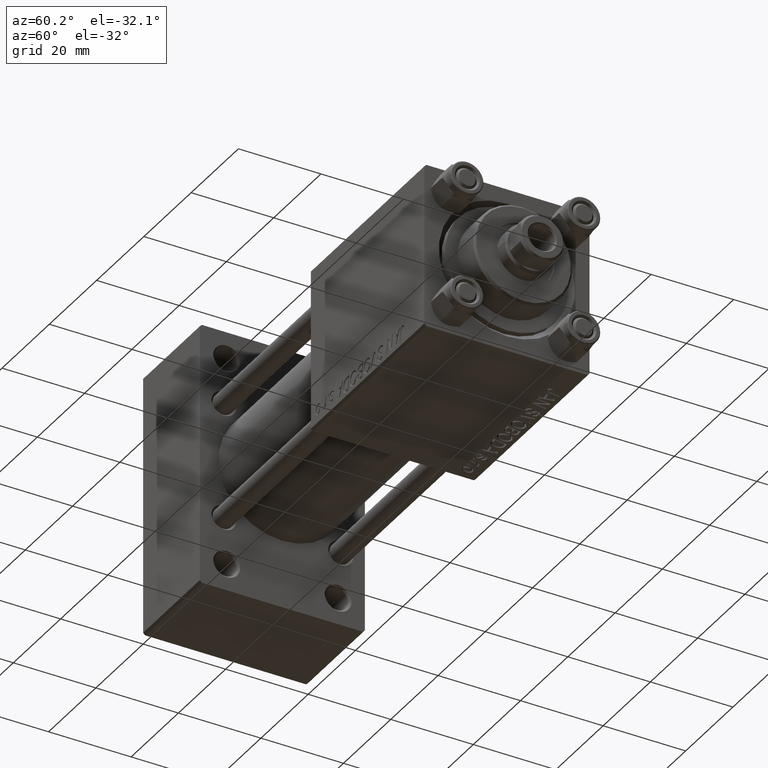
[diagram: clean part render]
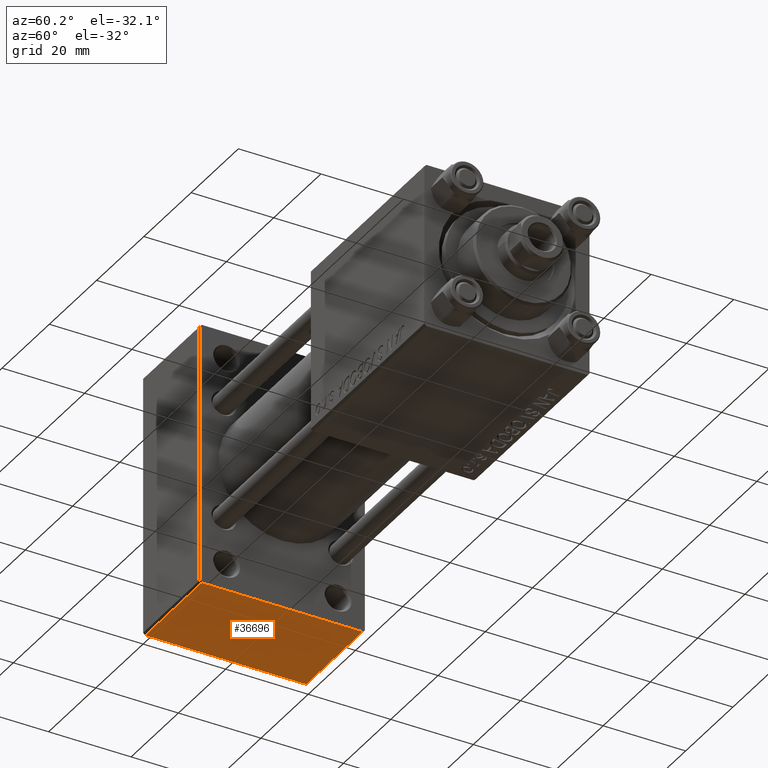
[diagram: same view with one face highlighted and labeled with its STEP entity id]
A machine part, auxiliary view. The second image highlights one B-rep face of the part: STEP entity #36696.
In plain terms, the highlighted planar face has unit normal (0, 0, -1).
Its self-contained STEP definition (entity closure, byte-faithful):
#1275 = VECTOR ( 'NONE', #8509, 1000.000000000000000 ) ;
#2503 = DIRECTION ( 'NONE',  ( -1.000000000000000000, 0.000000000000000000, -0.000000000000000000 ) ) ;
#2704 = VERTEX_POINT ( 'NONE', #43427 ) ;
#3828 = ORIENTED_EDGE ( 'NONE', *, *, #10250, .F. ) ;
#3974 = EDGE_CURVE ( 'NONE', #2704, #20991, #20163, .T. ) ;
#4506 = LINE ( 'NONE', #19899, #42049 ) ;
#4762 = CARTESIAN_POINT ( 'NONE',  ( 0.000000000000000000, -19.49999999999999645, -31.99999999999999289 ) ) ;
#5009 = DIRECTION ( 'NONE',  ( -1.000000000000000000, 0.000000000000000000, 0.000000000000000000 ) ) ;
#8509 = DIRECTION ( 'NONE',  ( 1.000000000000000000, 0.000000000000000000, 0.000000000000000000 ) ) ;
#9582 = FACE_OUTER_BOUND ( 'NONE', #32391, .T. ) ;
#10076 = CARTESIAN_POINT ( 'NONE',  ( 24.00000000000000000, 19.99999999999999645, -31.99999999999999289 ) ) ;
#10250 = EDGE_CURVE ( 'NONE', #45959, #20991, #4506, .T. ) ;
#12355 = CARTESIAN_POINT ( 'NONE',  ( 24.00000000000000000, 19.99999999999999645, -31.99999999999999289 ) ) ;
#17734 = VERTEX_POINT ( 'NONE', #35892 ) ;
#17906 = PLANE ( 'NONE',  #28968 ) ;
#19899 = CARTESIAN_POINT ( 'NONE',  ( 0.000000000000000000, 19.99999999999999645, -31.99999999999999289 ) ) ;
#20163 = LINE ( 'NONE', #4762, #21040 ) ;
#20676 = LINE ( 'NONE', #12355, #25183 ) ;
#20991 = VERTEX_POINT ( 'NONE', #21212 ) ;
#21040 = VECTOR ( 'NONE', #5009, 1000.000000000000000 ) ;
#21212 = CARTESIAN_POINT ( 'NONE',  ( 0.000000000000000000, -19.49999999999999645, -31.99999999999999289 ) ) ;
#23136 = EDGE_CURVE ( 'NONE', #45959, #17734, #42855, .T. ) ;
#25183 = VECTOR ( 'NONE', #36062, 1000.000000000000000 ) ;
#25232 = ORIENTED_EDGE ( 'NONE', *, *, #42055, .T. ) ;
#28968 = AXIS2_PLACEMENT_3D ( 'NONE', #10076, #37078, #2503 ) ;
#29257 = CARTESIAN_POINT ( 'NONE',  ( 0.000000000000000000, 19.49999999999999645, -31.99999999999999289 ) ) ;
#29416 = ORIENTED_EDGE ( 'NONE', *, *, #23136, .T. ) ;
#32391 = EDGE_LOOP ( 'NONE', ( #3828, #29416, #25232, #49721 ) ) ;
#35536 = DIRECTION ( 'NONE',  ( 0.000000000000000000, -1.000000000000000000, 0.000000000000000000 ) ) ;
#35892 = CARTESIAN_POINT ( 'NONE',  ( 24.00000000000000000, 19.49999999999999645, -31.99999999999999289 ) ) ;
#36062 = DIRECTION ( 'NONE',  ( 0.000000000000000000, -1.000000000000000000, 0.000000000000000000 ) ) ;
#36696 = ADVANCED_FACE ( 'NONE', ( #9582 ), #17906, .T. ) ;
#37078 = DIRECTION ( 'NONE',  ( 0.000000000000000000, 0.000000000000000000, -1.000000000000000000 ) ) ;
#42049 = VECTOR ( 'NONE', #35536, 1000.000000000000000 ) ;
#42055 = EDGE_CURVE ( 'NONE', #17734, #2704, #20676, .T. ) ;
#42855 = LINE ( 'NONE', #46397, #1275 ) ;
#43427 = CARTESIAN_POINT ( 'NONE',  ( 24.00000000000000000, -19.49999999999999645, -31.99999999999999289 ) ) ;
#45959 = VERTEX_POINT ( 'NONE', #29257 ) ;
#46397 = CARTESIAN_POINT ( 'NONE',  ( 24.00000000000000000, 19.49999999999999645, -31.99999999999999289 ) ) ;
#49721 = ORIENTED_EDGE ( 'NONE', *, *, #3974, .T. ) ;